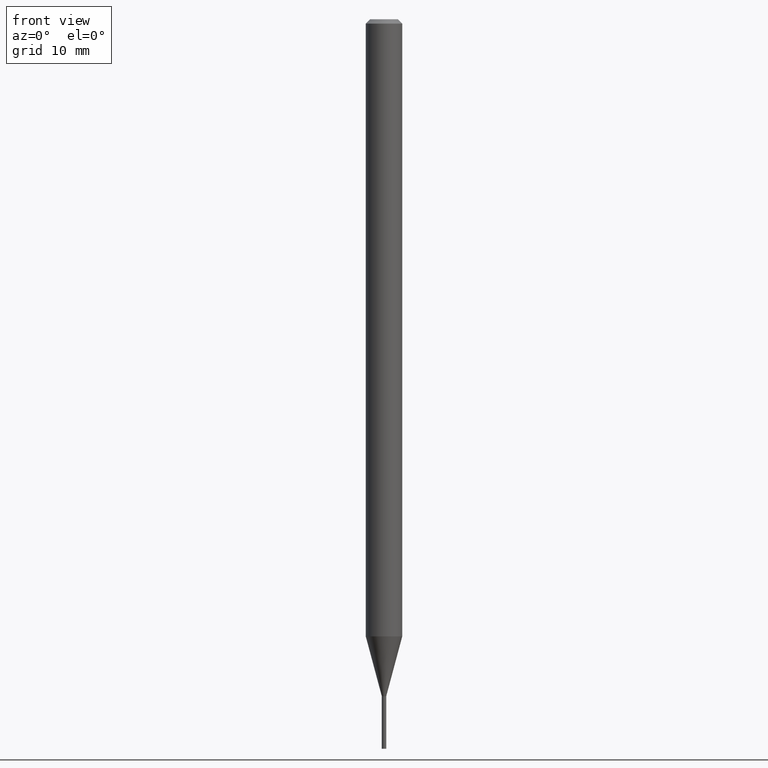
[diagram: clean part render]
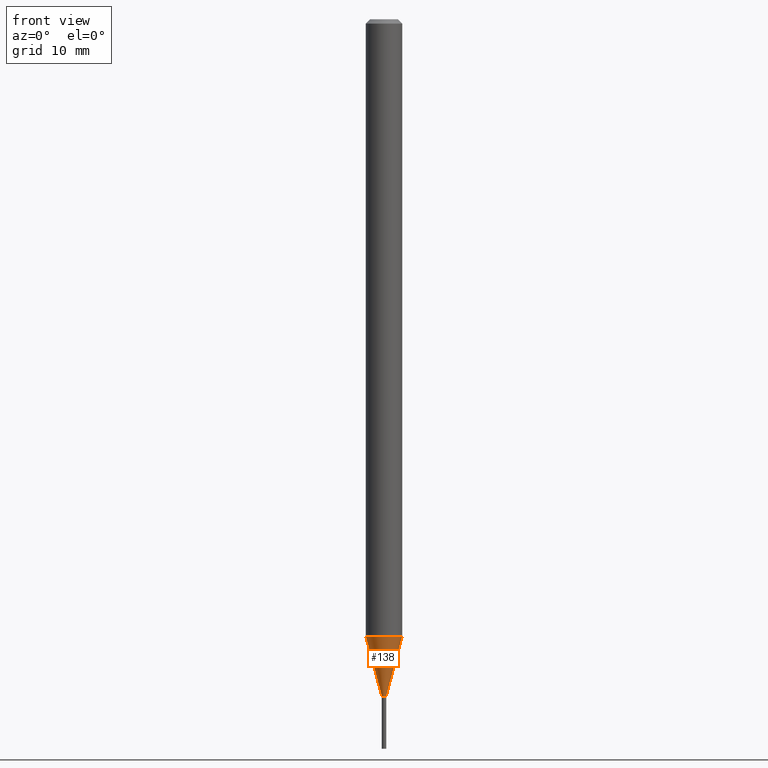
[diagram: same view with one face highlighted and labeled with its STEP entity id]
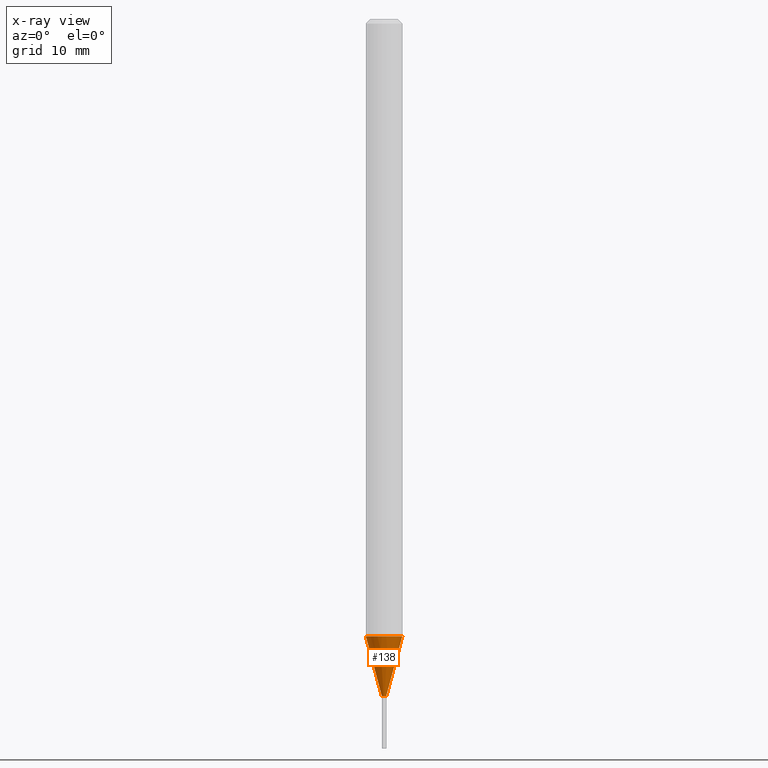
[diagram: x-ray of the same camera — body ghosted, the highlighted face saturated]
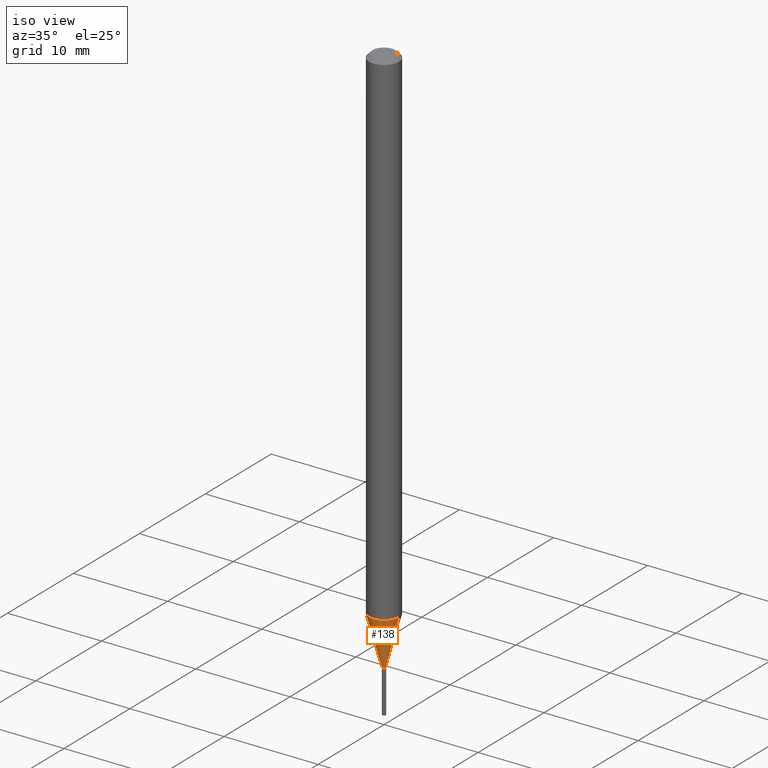
[diagram: same view with one face highlighted and labeled with its STEP entity id]
A machine part, front view. The second image highlights one B-rep face of the part: STEP entity #138.
The next image is the same camera in x-ray: the body ghosted, the highlighted face saturated — about 0% of this face is hidden behind the body in this view.
A second angle (iso view) of the same face is appended — the face is thin or edge-on in the first view.
In plain terms, the highlighted conical surface has half-angle 15 deg.
Its self-contained STEP definition (entity closure, byte-faithful):
#1 = LINE ( 'NONE', #72, #92 ) ;
#6 = ORIENTED_EDGE ( 'NONE', *, *, #412, .T. ) ;
#16 = CARTESIAN_POINT ( 'NONE',  ( -0.06250000000000000000, -6.939476280002764549E-15, -2.114737205583710811 ) ) ;
#25 = CARTESIAN_POINT ( 'NONE',  ( 5.673487630349517039E-29, -8.100236706116098414E-15, -2.320000000000000284 ) ) ;
#44 = CARTESIAN_POINT ( 'NONE',  ( 5.171523869534089269E-29, -7.383565489852826376E-15, -2.114737205583710811 ) ) ;
#60 = DIRECTION ( 'NONE',  ( 1.000000000000000000, -6.982962677686207546E-15, 0.000000000000000000 ) ) ;
#63 = LINE ( 'NONE', #330, #254 ) ;
#65 = ORIENTED_EDGE ( 'NONE', *, *, #95, .T. ) ;
#72 = CARTESIAN_POINT ( 'NONE',  ( 0.007499999999999647574, -8.152608926198741944E-15, -2.320000000000000284 ) ) ;
#73 = CIRCLE ( 'NONE', #142, 0.007499999999999647574 ) ;
#82 = CARTESIAN_POINT ( 'NONE',  ( 0.06250000000000000000, -7.820000657208219623E-15, -2.114737205583710811 ) ) ;
#92 = VECTOR ( 'NONE', #247, 39.37007874015748854 ) ;
#95 = EDGE_CURVE ( 'NONE', #114, #349, #73, .T. ) ;
#114 = VERTEX_POINT ( 'NONE', #302 ) ;
#119 = CIRCLE ( 'NONE', #203, 0.06250000000000000000 ) ;
#133 = CARTESIAN_POINT ( 'NONE',  ( 5.673487630349517039E-29, -8.100236706116098414E-15, -2.320000000000000284 ) ) ;
#138 = ADVANCED_FACE ( 'NONE', ( #448 ), #461, .T. ) ;
#142 = AXIS2_PLACEMENT_3D ( 'NONE', #133, #165, #60 ) ;
#156 = DIRECTION ( 'NONE',  ( -2.445468806185136597E-29, 3.491481338843145583E-15, 1.000000000000000000 ) ) ;
#157 = ORIENTED_EDGE ( 'NONE', *, *, #255, .F. ) ;
#158 = CARTESIAN_POINT ( 'NONE',  ( 0.007499999999999647574, -8.152608926198741944E-15, -2.320000000000000284 ) ) ;
#165 = DIRECTION ( 'NONE',  ( -2.445468806185136597E-29, 3.491481338843145583E-15, 1.000000000000000000 ) ) ;
#203 = AXIS2_PLACEMENT_3D ( 'NONE', #44, #156, #439 ) ;
#227 = EDGE_LOOP ( 'NONE', ( #287, #65, #6, #157 ) ) ;
#247 = DIRECTION ( 'NONE',  ( 0.2588190451025211836, 1.565188264969622559E-15, 0.9659258262890679791 ) ) ;
#248 = VERTEX_POINT ( 'NONE', #82 ) ;
#254 = VECTOR ( 'NONE', #456, 39.37007874015748854 ) ;
#255 = EDGE_CURVE ( 'NONE', #290, #248, #119, .T. ) ;
#275 = DIRECTION ( 'NONE',  ( -2.445468806185136597E-29, 3.491481338843145583E-15, 1.000000000000000000 ) ) ;
#287 = ORIENTED_EDGE ( 'NONE', *, *, #344, .F. ) ;
#290 = VERTEX_POINT ( 'NONE', #16 ) ;
#300 = AXIS2_PLACEMENT_3D ( 'NONE', #25, #275, #411 ) ;
#302 = CARTESIAN_POINT ( 'NONE',  ( -0.007499999999999647574, -7.493211140468429476E-15, -2.320000000000000284 ) ) ;
#330 = CARTESIAN_POINT ( 'NONE',  ( -0.007499999999999647574, -8.046946000934093614E-15, -2.320000000000000284 ) ) ;
#344 = EDGE_CURVE ( 'NONE', #114, #290, #63, .T. ) ;
#349 = VERTEX_POINT ( 'NONE', #158 ) ;
#411 = DIRECTION ( 'NONE',  ( 1.000000000000000000, -6.982962677686207546E-15, 0.000000000000000000 ) ) ;
#412 = EDGE_CURVE ( 'NONE', #349, #248, #1, .T. ) ;
#439 = DIRECTION ( 'NONE',  ( 1.000000000000000000, -6.982962677686262766E-15, 0.000000000000000000 ) ) ;
#448 = FACE_OUTER_BOUND ( 'NONE', #227, .T. ) ;
#456 = DIRECTION ( 'NONE',  ( -0.2588190451025211836, 5.211531920934547886E-15, 0.9659258262890679791 ) ) ;
#461 = CONICAL_SURFACE ( 'NONE', #300, 0.007499999999999647574, 0.2617993877991499074 ) ;